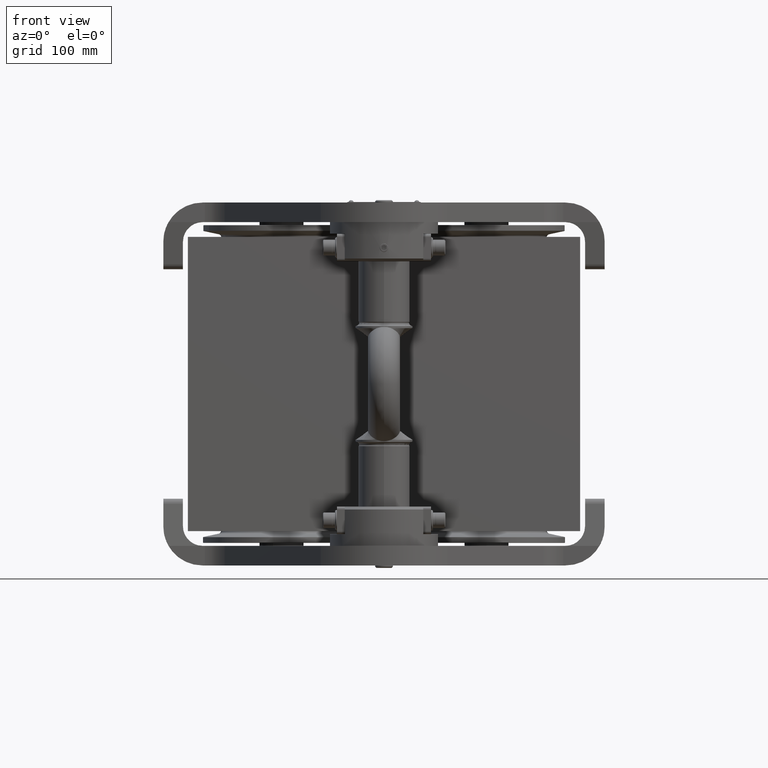
[diagram: clean part render]
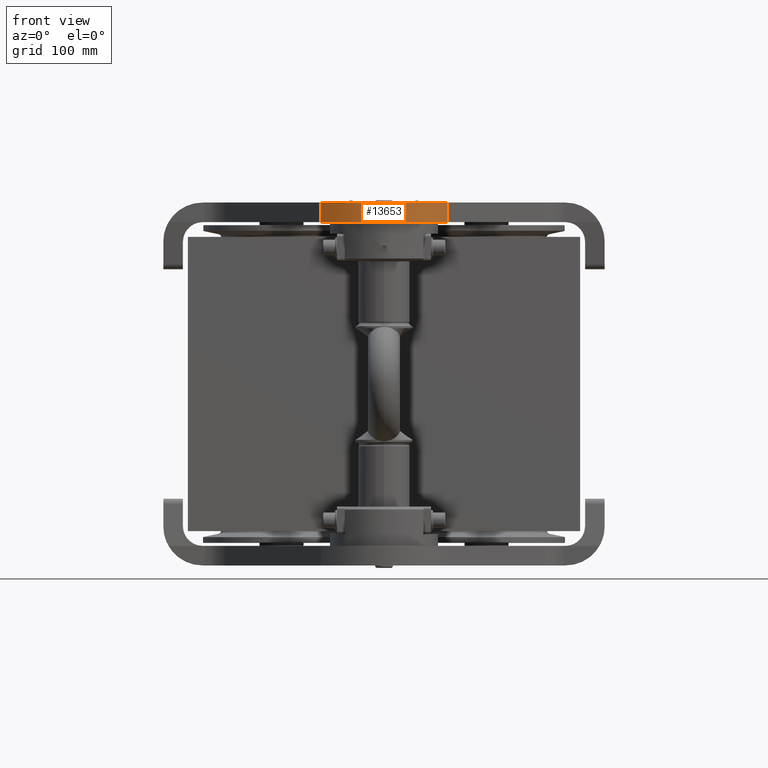
[diagram: same view with one face highlighted and labeled with its STEP entity id]
A machine part, front view. The second image highlights one B-rep face of the part: STEP entity #13653.
In plain terms, the highlighted cylindrical surface (partial cylindrical patch) has radius 80 mm, axis along (0, -0, 1).
Its self-contained STEP definition (entity closure, byte-faithful):
#117 = AXIS2_PLACEMENT_3D ( 'NONE', #43971, #31187, #53120 ) ;
#2374 = CARTESIAN_POINT ( 'NONE',  ( 64.58471424461937700, -270.7103239338690100, 165.0000000000004500 ) ) ;
#2895 = LINE ( 'NONE', #7222, #19583 ) ;
#3120 = DIRECTION ( 'NONE',  ( -1.773867614665997800E-016, 1.969388668439095500E-032, -1.000000000000000000 ) ) ;
#4069 = CYLINDRICAL_SURFACE ( 'NONE', #117, 79.99999999999998600 ) ;
#5752 = EDGE_CURVE ( 'NONE', #22332, #28520, #2895, .T. ) ;
#7222 = CARTESIAN_POINT ( 'NONE',  ( -64.58471424461947700, -270.7103239338690100, 117.0000000000004300 ) ) ;
#9024 = EDGE_CURVE ( 'NONE', #28520, #15213, #36990, .T. ) ;
#13653 = ADVANCED_FACE ( 'NONE', ( #34263 ), #4069, .T. ) ;
#15213 = VERTEX_POINT ( 'NONE', #30195 ) ;
#19583 = VECTOR ( 'NONE', #48633, 1000.000000000000000 ) ;
#19954 = VECTOR ( 'NONE', #36517, 1000.000000000000000 ) ;
#20233 = ORIENTED_EDGE ( 'NONE', *, *, #9024, .F. ) ;
#21685 = DIRECTION ( 'NONE',  ( -1.110223024625156200E-016, -1.000000000000000000, 0.0000000000000000000 ) ) ;
#22332 = VERTEX_POINT ( 'NONE', #30698 ) ;
#27945 = CARTESIAN_POINT ( 'NONE',  ( 64.58471424461937700, -270.7103239338690100, 117.0000000000004100 ) ) ;
#28339 = LINE ( 'NONE', #27945, #19954 ) ;
#28520 = VERTEX_POINT ( 'NONE', #39937 ) ;
#29938 = EDGE_CURVE ( 'NONE', #34696, #15213, #28339, .T. ) ;
#30195 = CARTESIAN_POINT ( 'NONE',  ( 64.58471424461937700, -270.7103239338690100, 185.0000000000004300 ) ) ;
#30698 = CARTESIAN_POINT ( 'NONE',  ( -64.58471424461947700, -270.7103239338690100, 165.0000000000004500 ) ) ;
#31187 = DIRECTION ( 'NONE',  ( 5.551115123125780200E-017, -6.162975822039150600E-033, 1.000000000000000000 ) ) ;
#33463 = CARTESIAN_POINT ( 'NONE',  ( -3.898910617972541900E-014, -223.4999999999998900, 185.0000000000004300 ) ) ;
#33607 = ORIENTED_EDGE ( 'NONE', *, *, #37460, .F. ) ;
#34069 = AXIS2_PLACEMENT_3D ( 'NONE', #43629, #3120, #48276 ) ;
#34263 = FACE_OUTER_BOUND ( 'NONE', #44644, .T. ) ;
#34696 = VERTEX_POINT ( 'NONE', #2374 ) ;
#36517 = DIRECTION ( 'NONE',  ( 5.551115123125780200E-017, -6.162975822039150600E-033, 1.000000000000000000 ) ) ;
#36990 = CIRCLE ( 'NONE', #46106, 79.99999999999998600 ) ;
#37460 = EDGE_CURVE ( 'NONE', #34696, #22332, #39784, .T. ) ;
#39784 = CIRCLE ( 'NONE', #34069, 80.00000000000000000 ) ;
#39937 = CARTESIAN_POINT ( 'NONE',  ( -64.58471424461947700, -270.7103239338690100, 185.0000000000004300 ) ) ;
#41494 = ORIENTED_EDGE ( 'NONE', *, *, #5752, .F. ) ;
#43629 = CARTESIAN_POINT ( 'NONE',  ( -4.009932920435057000E-014, -223.4999999999998900, 165.0000000000004500 ) ) ;
#43971 = CARTESIAN_POINT ( 'NONE',  ( -4.276386446345093900E-014, -223.4999999999998900, 117.0000000000004100 ) ) ;
#44644 = EDGE_LOOP ( 'NONE', ( #47361, #20233, #41494, #33607 ) ) ;
#45994 = DIRECTION ( 'NONE',  ( 5.551115123125780200E-017, -6.162975822039150600E-033, 1.000000000000000000 ) ) ;
#46106 = AXIS2_PLACEMENT_3D ( 'NONE', #33463, #45994, #21685 ) ;
#47361 = ORIENTED_EDGE ( 'NONE', *, *, #29938, .T. ) ;
#48276 = DIRECTION ( 'NONE',  ( -1.000000000000000000, 0.0000000000000000000, 3.469446951953614200E-016 ) ) ;
#48633 = DIRECTION ( 'NONE',  ( 5.551115123125780200E-017, -6.162975822039150600E-033, 1.000000000000000000 ) ) ;
#53120 = DIRECTION ( 'NONE',  ( 1.110223024625156200E-016, 1.000000000000000000, 0.0000000000000000000 ) ) ;